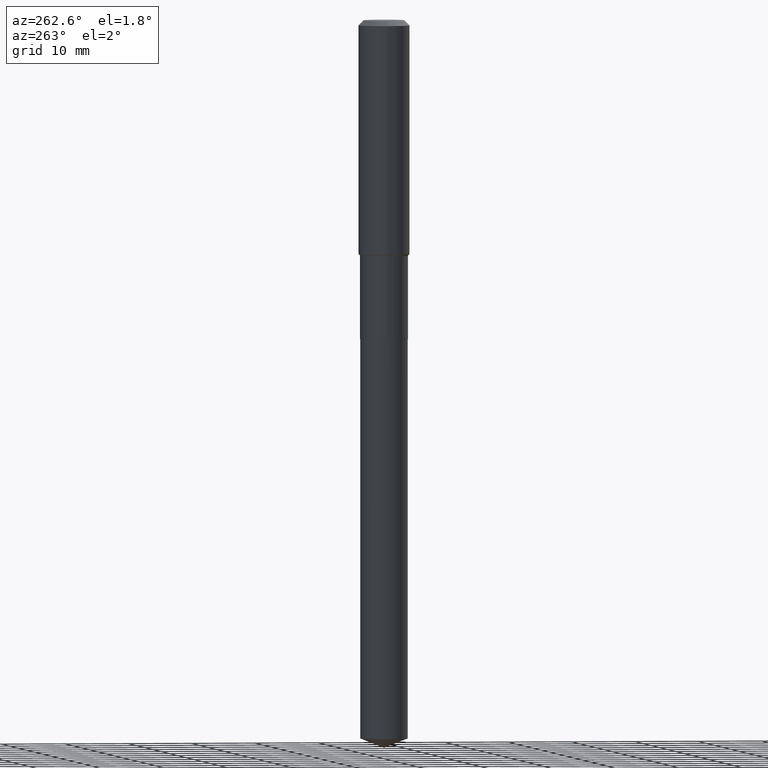
[diagram: clean part render]
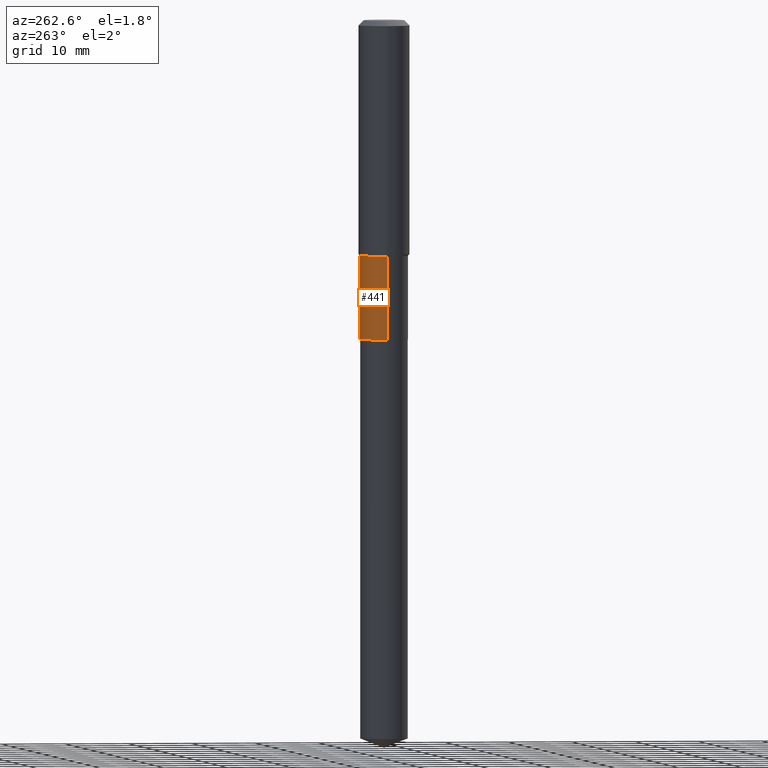
[diagram: same view with one face highlighted and labeled with its STEP entity id]
A machine part, auxiliary view. The second image highlights one B-rep face of the part: STEP entity #441.
In plain terms, the highlighted cylindrical surface (edge-blend (fillet) strip) has radius 3.7503 mm, axis along (-0, 0, 1).
Its self-contained STEP definition (entity closure, byte-faithful):
#8 = VERTEX_POINT ( 'NONE', #189 ) ;
#19 = EDGE_CURVE ( 'NONE', #422, #332, #454, .T. ) ;
#27 = DIRECTION ( 'NONE',  ( 1.000000000000000000, -6.982962677686266711E-15, 0.000000000000000000 ) ) ;
#32 = VECTOR ( 'NONE', #34, 39.37007874015748143 ) ;
#34 = DIRECTION ( 'NONE',  ( -2.445468806185136877E-29, 3.491481338843145188E-15, 1.000000000000000000 ) ) ;
#42 = DIRECTION ( 'NONE',  ( -2.445468806185136597E-29, 3.491481338843145583E-15, 1.000000000000000000 ) ) ;
#69 = AXIS2_PLACEMENT_3D ( 'NONE', #448, #134, #79 ) ;
#79 = DIRECTION ( 'NONE',  ( 1.000000000000000000, -6.982962677686266711E-15, 4.876176775795935793E-29 ) ) ;
#83 = CARTESIAN_POINT ( 'NONE',  ( -0.1476500000000000035, -4.920967591938107008E-15, -1.968000000000000194 ) ) ;
#98 = EDGE_CURVE ( 'NONE', #422, #233, #352, .T. ) ;
#102 = DIRECTION ( 'NONE',  ( -2.445468806185136877E-29, 3.491481338843145188E-15, 1.000000000000000000 ) ) ;
#125 = CARTESIAN_POINT ( 'NONE',  ( 0.1476499999999999480, -6.099967047092856006E-15, -1.451799999999999979 ) ) ;
#131 = CIRCLE ( 'NONE', #311, 0.1476499999999999480 ) ;
#134 = DIRECTION ( 'NONE',  ( -2.445468806185136597E-29, 3.491481338843145583E-15, 1.000000000000000000 ) ) ;
#176 = ORIENTED_EDGE ( 'NONE', *, *, #19, .F. ) ;
#177 = EDGE_CURVE ( 'NONE', #332, #8, #131, .T. ) ;
#189 = CARTESIAN_POINT ( 'NONE',  ( -0.1476499999999999480, -4.920967591938107008E-15, -1.451799999999999979 ) ) ;
#216 = FACE_OUTER_BOUND ( 'NONE', #378, .T. ) ;
#228 = CYLINDRICAL_SURFACE ( 'NONE', #69, 0.1476499999999999757 ) ;
#229 = ORIENTED_EDGE ( 'NONE', *, *, #98, .T. ) ;
#232 = DIRECTION ( 'NONE',  ( 1.000000000000000000, -6.982962677686270655E-15, 0.000000000000000000 ) ) ;
#233 = VERTEX_POINT ( 'NONE', #83 ) ;
#263 = CARTESIAN_POINT ( 'NONE',  ( 0.1476500000000000035, -7.902269714203688077E-15, -1.968000000000000194 ) ) ;
#267 = AXIS2_PLACEMENT_3D ( 'NONE', #271, #42, #232 ) ;
#271 = CARTESIAN_POINT ( 'NONE',  ( 4.812682610572349594E-29, -6.871235274843310993E-15, -1.968000000000000194 ) ) ;
#286 = ORIENTED_EDGE ( 'NONE', *, *, #177, .F. ) ;
#291 = CARTESIAN_POINT ( 'NONE',  ( 3.550331612819581366E-29, -5.068932607732478922E-15, -1.451799999999999979 ) ) ;
#311 = AXIS2_PLACEMENT_3D ( 'NONE', #291, #406, #27 ) ;
#330 = CARTESIAN_POINT ( 'NONE',  ( -0.1476499999999999757, 1.049116349349787752E-15, -7.262807660761367809E-30 ) ) ;
#332 = VERTEX_POINT ( 'NONE', #125 ) ;
#351 = VECTOR ( 'NONE', #102, 39.37007874015748143 ) ;
#352 = CIRCLE ( 'NONE', #267, 0.1476500000000000035 ) ;
#373 = EDGE_CURVE ( 'NONE', #233, #8, #412, .T. ) ;
#378 = EDGE_LOOP ( 'NONE', ( #229, #433, #286, #176 ) ) ;
#406 = DIRECTION ( 'NONE',  ( -2.445468806185136597E-29, 3.491481338843145583E-15, 1.000000000000000000 ) ) ;
#412 = LINE ( 'NONE', #330, #32 ) ;
#422 = VERTEX_POINT ( 'NONE', #263 ) ;
#433 = ORIENTED_EDGE ( 'NONE', *, *, #373, .T. ) ;
#441 = ADVANCED_FACE ( 'NONE', ( #216 ), #228, .T. ) ;
#448 = CARTESIAN_POINT ( 'NONE',  ( 0.000000000000000000, 0.000000000000000000, 0.000000000000000000 ) ) ;
#450 = CARTESIAN_POINT ( 'NONE',  ( 0.1476499999999999757, -1.031034439360377084E-15, 7.199675009462698285E-30 ) ) ;
#454 = LINE ( 'NONE', #450, #351 ) ;